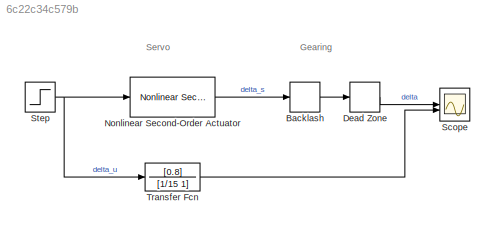
MODEL slx_6c22c34c579b
KIND model
CONFIG AbsTol = auto
CONFIG EnableMultiTasking = off
CONFIG FixedStep = auto
CONFIG MaxStep = 1e-4
CONFIG MinStep = auto
CONFIG RelTol = 1e-3
CONFIG SampleTimeConstraint = Unconstrained
CONFIG SolverName = VariableStepAuto
CONFIG StartTime = 0.0
CONFIG StopTime = 2
BLOCK [Backlash] Backlash
  BacklashWidth = deg2rad(act_backlash)
BLOCK [DeadZone] Dead Zone
  LowerValue = -deg2rad(act_backlash)
  UpperValue = deg2rad(act_backlash)
BLOCK [Reference] Nonlinear Second-Order Actuator  REF=aerolibactuator/Nonlinear Second-Order Actuator
  SourceBlock = aerolibactuator/Nonlinear Second-Order Actuator
  SourceType = NonlinearSecondOrderActuator
BLOCK [Scope] Scope
  Floating = off
  NumInputPorts = 2
  ScopeSpecificationString = Simulink.scopes.TimeScopeBlockCfg('CurrentConfiguration', extmgr.ConfigurationSet(extmgr.Configuration('Core','General UI',true),extmgr.Configuration('Core','Source UI',true),extmgr.Configuration('Sources','WiredSimulink',true),extmgr.Configuration('Visuals','Time Domain',true,'SerializedDisplays',{struct('MinYLimReal','-0.00864','MaxYLimReal','0.08986','YLabelReal','','MinYLimMag','0.00000','MaxY...<+1500ch>
BLOCK [Step] Step
  After = 0.1
  SampleTime = 0
BLOCK [TransferFcn] Transfer Fcn
  Denominator = [1/15 1]
  Numerator = [0.8]
ANNOTATION (root): Gearing
ANNOTATION (root): Servo
LINE Backlash:1 -> Dead Zone:1
LINE Dead Zone:1 -> Scope:1
LINE Nonlinear Second-Order Actuator:1 -> Backlash:1
NET Step:1 -> Nonlinear Second-Order Actuator:1, Transfer Fcn:1
LINE Transfer Fcn:1 -> Scope:2
note: NET lines group one-source signal fan-out (src -> all destinations, sorted); 1:1 wires keep LINE
